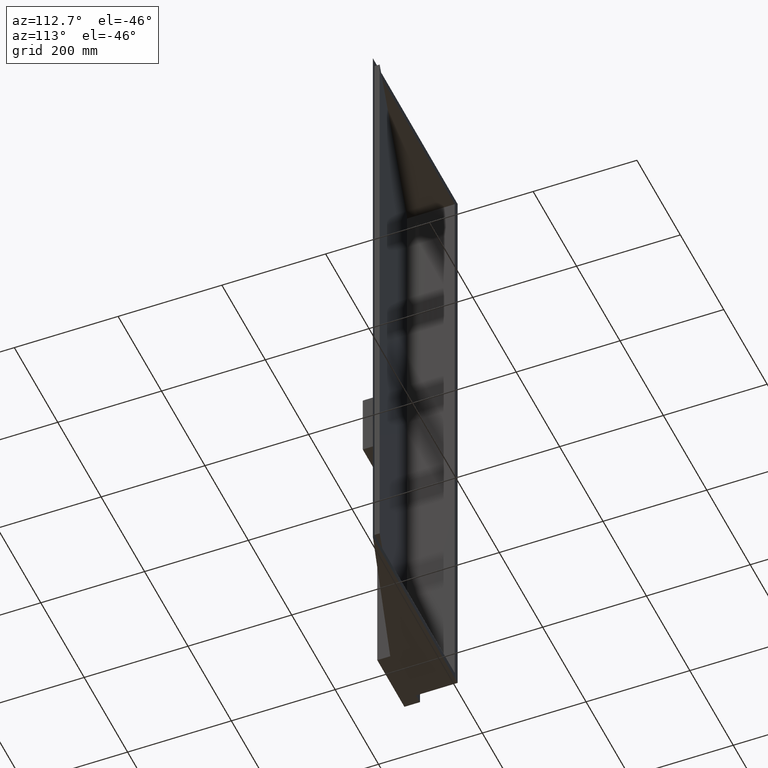
[diagram: clean part render]
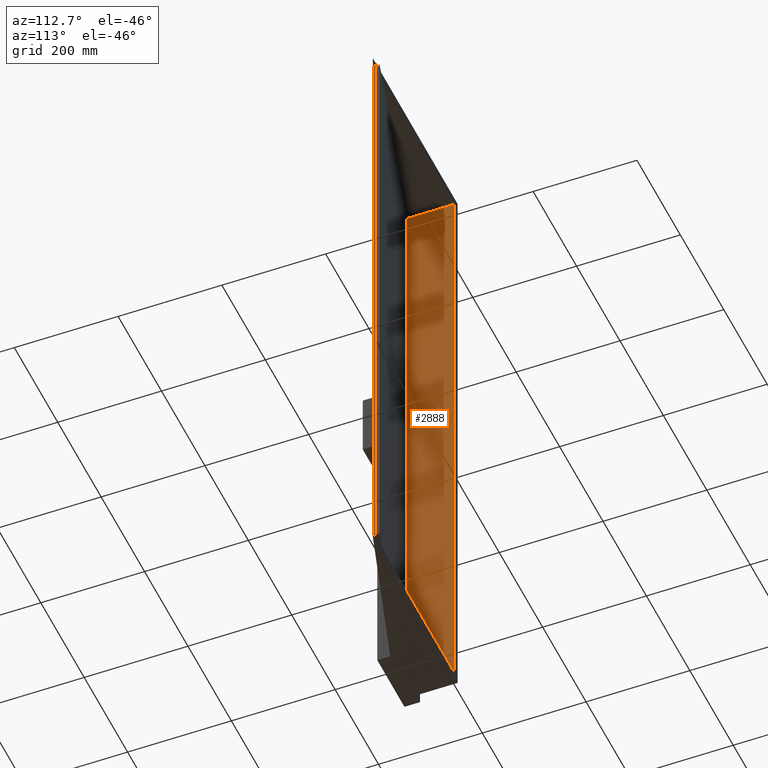
[diagram: same view with one face highlighted and labeled with its STEP entity id]
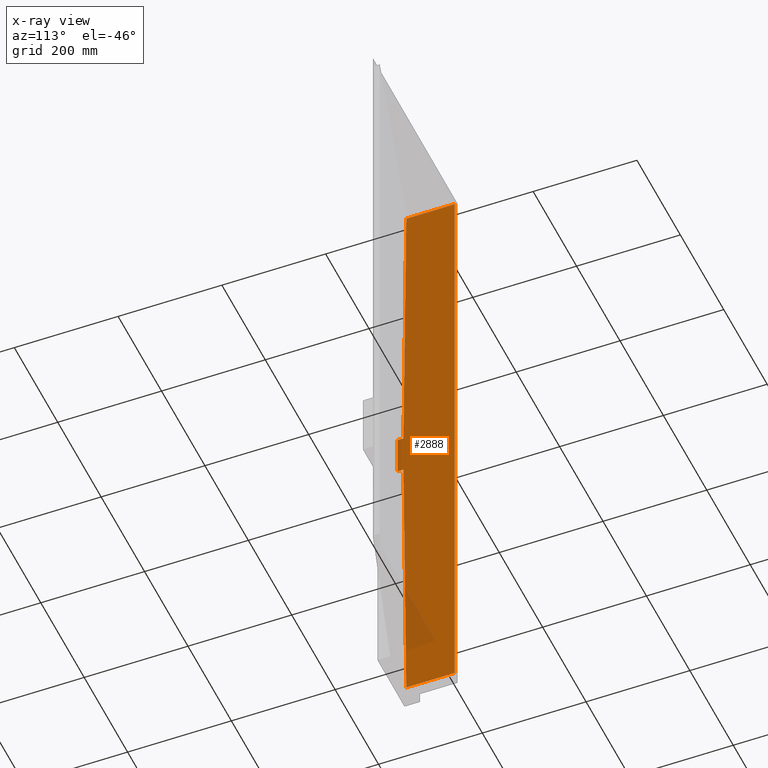
[diagram: x-ray of the same camera — body ghosted, the highlighted face saturated]
A machine part, auxiliary view. The second image highlights one B-rep face of the part: STEP entity #2888.
The next image is the same camera in x-ray: the body ghosted, the highlighted face saturated — about 5% of this face is hidden behind the body in this view.
In plain terms, the highlighted planar face has unit normal (-1, 0, 0).
Its self-contained STEP definition (entity closure, byte-faithful):
#35 = VECTOR ( 'NONE', #2724, 1000.000000000000000 ) ;
#106 = DIRECTION ( 'NONE',  ( -0.0000000000000000000, 0.009820708394529883600, 0.9999517756805222900 ) ) ;
#164 = CARTESIAN_POINT ( 'NONE',  ( -73.11638246079654400, 0.0000000000000000000, 613.0000000000000000 ) ) ;
#176 = DIRECTION ( 'NONE',  ( -0.0000000000000000000, -1.000000000000000000, -3.154003094557523800E-015 ) ) ;
#224 = LINE ( 'NONE', #2708, #35 ) ;
#248 = VERTEX_POINT ( 'NONE', #1866 ) ;
#409 = LINE ( 'NONE', #1572, #820 ) ;
#411 = ORIENTED_EDGE ( 'NONE', *, *, #596, .F. ) ;
#429 = EDGE_CURVE ( 'NONE', #1521, #1698, #1465, .T. ) ;
#479 = ORIENTED_EDGE ( 'NONE', *, *, #922, .F. ) ;
#518 = ORIENTED_EDGE ( 'NONE', *, *, #1610, .F. ) ;
#579 = CARTESIAN_POINT ( 'NONE',  ( -73.11638246079655800, -93.50000000000001400, 600.0000000000000000 ) ) ;
#583 = VECTOR ( 'NONE', #1650, 1000.000000000000000 ) ;
#596 = EDGE_CURVE ( 'NONE', #2620, #1710, #809, .T. ) ;
#634 = LINE ( 'NONE', #1692, #583 ) ;
#725 = VECTOR ( 'NONE', #2037, 1000.000000000000000 ) ;
#744 = VERTEX_POINT ( 'NONE', #2735 ) ;
#747 = EDGE_CURVE ( 'NONE', #2620, #1698, #224, .T. ) ;
#809 = LINE ( 'NONE', #164, #725 ) ;
#813 = ORIENTED_EDGE ( 'NONE', *, *, #1668, .T. ) ;
#820 = VECTOR ( 'NONE', #1564, 1000.000000000000000 ) ;
#847 = EDGE_CURVE ( 'NONE', #1792, #248, #2199, .T. ) ;
#916 = DIRECTION ( 'NONE',  ( 0.0000000000000000000, -0.009820708394529883600, 0.9999517756805222900 ) ) ;
#922 = EDGE_CURVE ( 'NONE', #1710, #744, #2030, .T. ) ;
#967 = EDGE_LOOP ( 'NONE', ( #1548, #479, #411, #1286, #2844, #518, #813, #2898 ) ) ;
#1071 = LINE ( 'NONE', #1623, #2507 ) ;
#1286 = ORIENTED_EDGE ( 'NONE', *, *, #747, .T. ) ;
#1465 = LINE ( 'NONE', #579, #1504 ) ;
#1504 = VECTOR ( 'NONE', #106, 1000.000000000000100 ) ;
#1521 = VERTEX_POINT ( 'NONE', #1955 ) ;
#1548 = ORIENTED_EDGE ( 'NONE', *, *, #2537, .F. ) ;
#1564 = DIRECTION ( 'NONE',  ( -0.0000000000000000000, -0.0000000000000000000, -1.000000000000000000 ) ) ;
#1572 = CARTESIAN_POINT ( 'NONE',  ( -73.11638246079655800, -110.0000000000000100, 613.0000000000000000 ) ) ;
#1590 = CARTESIAN_POINT ( 'NONE',  ( -73.11638246079655800, -110.0000000000000100, 40.00000000000003600 ) ) ;
#1610 = EDGE_CURVE ( 'NONE', #1644, #1521, #634, .T. ) ;
#1623 = CARTESIAN_POINT ( 'NONE',  ( -73.11638246079655800, -93.50000000000001400, -600.0000000000000000 ) ) ;
#1644 = VERTEX_POINT ( 'NONE', #1590 ) ;
#1650 = DIRECTION ( 'NONE',  ( 0.0000000000000000000, 1.000000000000000000, -3.154003094557523800E-015 ) ) ;
#1668 = EDGE_CURVE ( 'NONE', #1644, #248, #409, .T. ) ;
#1692 = CARTESIAN_POINT ( 'NONE',  ( -73.11638246079655800, -109.9999999999999700, 40.00000000000003600 ) ) ;
#1698 = VERTEX_POINT ( 'NONE', #2455 ) ;
#1710 = VERTEX_POINT ( 'NONE', #2166 ) ;
#1792 = VERTEX_POINT ( 'NONE', #2846 ) ;
#1866 = CARTESIAN_POINT ( 'NONE',  ( -73.11638246079655800, -109.9999999999999700, -40.00000000000003600 ) ) ;
#1878 = VECTOR ( 'NONE', #2832, 1000.000000000000000 ) ;
#1945 = CARTESIAN_POINT ( 'NONE',  ( -73.11638246079654400, 0.0000000000000000000, 600.0000000000000000 ) ) ;
#1955 = CARTESIAN_POINT ( 'NONE',  ( -73.11638246079655800, -98.99986192803544300, 40.00000000000003600 ) ) ;
#2011 = AXIS2_PLACEMENT_3D ( 'NONE', #2930, #2762, #2731 ) ;
#2030 = LINE ( 'NONE', #2790, #1878 ) ;
#2037 = DIRECTION ( 'NONE',  ( 0.0000000000000000000, 0.0000000000000000000, -1.000000000000000000 ) ) ;
#2166 = CARTESIAN_POINT ( 'NONE',  ( -73.11638246079654400, 0.0000000000000000000, -600.0000000000000000 ) ) ;
#2199 = LINE ( 'NONE', #2784, #2236 ) ;
#2236 = VECTOR ( 'NONE', #176, 1000.000000000000000 ) ;
#2455 = CARTESIAN_POINT ( 'NONE',  ( -73.11638246079655800, -93.50000000000001400, 600.0000000000000000 ) ) ;
#2460 = FACE_OUTER_BOUND ( 'NONE', #967, .T. ) ;
#2507 = VECTOR ( 'NONE', #916, 1000.000000000000100 ) ;
#2537 = EDGE_CURVE ( 'NONE', #744, #1792, #1071, .T. ) ;
#2620 = VERTEX_POINT ( 'NONE', #1945 ) ;
#2708 = CARTESIAN_POINT ( 'NONE',  ( -73.11638246079654400, 9.999999999999955600, 600.0000000000000000 ) ) ;
#2724 = DIRECTION ( 'NONE',  ( -1.387778780781446400E-016, -1.000000000000000000, 0.0000000000000000000 ) ) ;
#2731 = DIRECTION ( 'NONE',  ( 0.0000000000000000000, 0.0000000000000000000, 1.000000000000000000 ) ) ;
#2735 = CARTESIAN_POINT ( 'NONE',  ( -73.11638246079655800, -93.50000000000001400, -600.0000000000000000 ) ) ;
#2757 = PLANE ( 'NONE',  #2011 ) ;
#2762 = DIRECTION ( 'NONE',  ( -1.000000000000000000, 0.0000000000000000000, 0.0000000000000000000 ) ) ;
#2784 = CARTESIAN_POINT ( 'NONE',  ( -73.11638246079655800, -109.9999999999999700, -40.00000000000003600 ) ) ;
#2790 = CARTESIAN_POINT ( 'NONE',  ( -73.11638246079654400, 9.999999999999955600, -600.0000000000000000 ) ) ;
#2832 = DIRECTION ( 'NONE',  ( -1.387778780781446400E-016, -1.000000000000000000, 0.0000000000000000000 ) ) ;
#2844 = ORIENTED_EDGE ( 'NONE', *, *, #429, .F. ) ;
#2846 = CARTESIAN_POINT ( 'NONE',  ( -73.11638246079655800, -98.99986192803544300, -40.00000000000000000 ) ) ;
#2888 = ADVANCED_FACE ( 'NONE', ( #2460 ), #2757, .F. ) ;
#2898 = ORIENTED_EDGE ( 'NONE', *, *, #847, .F. ) ;
#2930 = CARTESIAN_POINT ( 'NONE',  ( -73.11638246079655800, -110.0000000000000100, 613.0000000000000000 ) ) ;